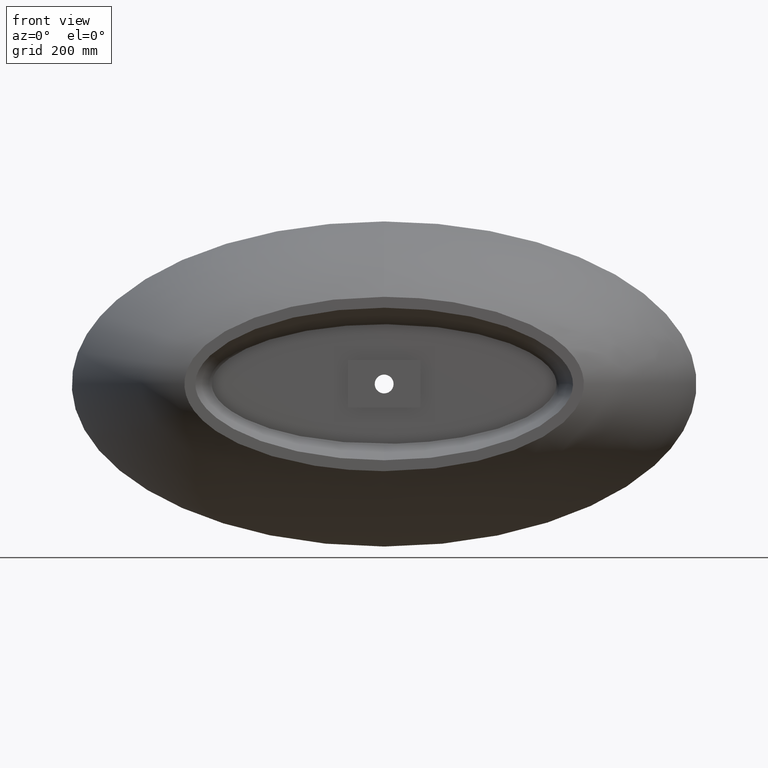
[diagram: clean part render]
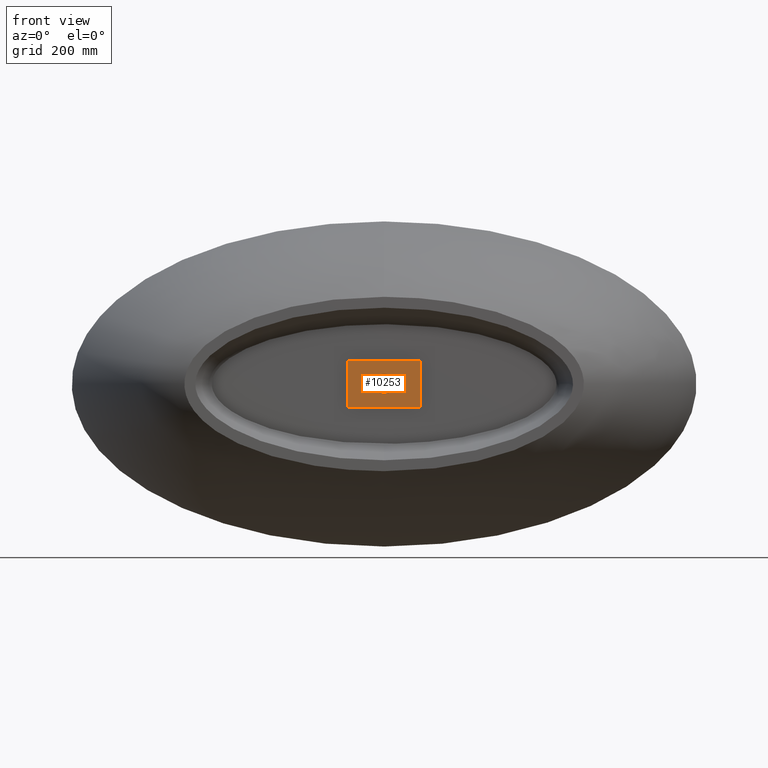
[diagram: same view with one face highlighted and labeled with its STEP entity id]
A machine part, front view. The second image highlights one B-rep face of the part: STEP entity #10253.
In plain terms, the highlighted planar face has unit normal (0, -1, -0).
Its self-contained STEP definition (entity closure, byte-faithful):
#177 = CARTESIAN_POINT ( 'NONE',  ( -100.0000000000368914, -471.0000000000082423, -64.99999999999909051 ) ) ;
#218 = VERTEX_POINT ( 'NONE', #12627 ) ;
#381 = FACE_OUTER_BOUND ( 'NONE', #6553, .T. ) ;
#452 = CARTESIAN_POINT ( 'NONE',  ( 99.99999999996312283, -470.9999999999922693, 65.00000000000092371 ) ) ;
#1175 = ORIENTED_EDGE ( 'NONE', *, *, #13981, .T. ) ;
#1448 = CARTESIAN_POINT ( 'NONE',  ( 99.99999999996312283, -470.9999999999916440, -64.99999999999909051 ) ) ;
#1531 = FACE_BOUND ( 'NONE', #9932, .T. ) ;
#1742 = VERTEX_POINT ( 'NONE', #10378 ) ;
#2058 = VERTEX_POINT ( 'NONE', #7768 ) ;
#2182 = DIRECTION ( 'NONE',  ( 8.291730470006079686E-14, -1.000000000000000000, -4.990419084549222506E-15 ) ) ;
#2456 = LINE ( 'NONE', #452, #5154 ) ;
#2596 = DIRECTION ( 'NONE',  ( -0.000000000000000000, -4.697097411875662165E-15, 1.000000000000000000 ) ) ;
#2629 = VECTOR ( 'NONE', #5401, 1000.000000000000000 ) ;
#2698 = EDGE_CURVE ( 'NONE', #1742, #218, #7873, .T. ) ;
#2815 = ORIENTED_EDGE ( 'NONE', *, *, #13725, .T. ) ;
#3080 = AXIS2_PLACEMENT_3D ( 'NONE', #13056, #13996, #5469 ) ;
#3603 = PLANE ( 'NONE',  #13150 ) ;
#3745 = DIRECTION ( 'NONE',  ( 1.000000000000000000, 8.298917109073045140E-14, 0.000000000000000000 ) ) ;
#3827 = LINE ( 'NONE', #11500, #11795 ) ;
#4280 = DIRECTION ( 'NONE',  ( 1.000000000000000000, 8.298917109073045140E-14, 0.000000000000000000 ) ) ;
#4538 = VERTEX_POINT ( 'NONE', #1448 ) ;
#4926 = VECTOR ( 'NONE', #4280, 1000.000000000000000 ) ;
#5154 = VECTOR ( 'NONE', #2596, 1000.000000000000000 ) ;
#5401 = DIRECTION ( 'NONE',  ( 0.000000000000000000, 4.697097411875662165E-15, -1.000000000000000000 ) ) ;
#5406 = ORIENTED_EDGE ( 'NONE', *, *, #2698, .F. ) ;
#5469 = DIRECTION ( 'NONE',  ( 1.000000000000000000, 8.326672684711607817E-14, 0.000000000000000000 ) ) ;
#5749 = ORIENTED_EDGE ( 'NONE', *, *, #9009, .F. ) ;
#5984 = DIRECTION ( 'NONE',  ( -1.000000000000000000, -8.298917109073045140E-14, -0.000000000000000000 ) ) ;
#6553 = EDGE_LOOP ( 'NONE', ( #13470, #2815, #1175, #11745 ) ) ;
#7617 = VERTEX_POINT ( 'NONE', #13845 ) ;
#7768 = CARTESIAN_POINT ( 'NONE',  ( 99.99999999996312283, -470.9999999999922693, 65.00000000000092371 ) ) ;
#7873 = CIRCLE ( 'NONE', #9956, 25.99999999992838795 ) ;
#7976 = CARTESIAN_POINT ( 'NONE',  ( 3.908696532065535291E-11, -471.0000000000001705, -2.216146062738193839E-12 ) ) ;
#8356 = CIRCLE ( 'NONE', #3080, 25.99999999992838795 ) ;
#8461 = EDGE_CURVE ( 'NONE', #11061, #4538, #8720, .T. ) ;
#8720 = LINE ( 'NONE', #177, #4926 ) ;
#8855 = CARTESIAN_POINT ( 'NONE',  ( 3.898174842273249223E-11, -471.0000000000002274, -2.348196622013039197E-12 ) ) ;
#9009 = EDGE_CURVE ( 'NONE', #218, #1742, #8356, .T. ) ;
#9458 = CARTESIAN_POINT ( 'NONE',  ( -100.0000000000368914, -471.0000000000082423, -64.99999999999909051 ) ) ;
#9801 = DIRECTION ( 'NONE',  ( 1.000000000000000000, 8.326672684711607817E-14, 0.000000000000000000 ) ) ;
#9932 = EDGE_LOOP ( 'NONE', ( #5749, #5406 ) ) ;
#9956 = AXIS2_PLACEMENT_3D ( 'NONE', #8855, #2182, #9801 ) ;
#10155 = EDGE_CURVE ( 'NONE', #4538, #2058, #2456, .T. ) ;
#10253 = ADVANCED_FACE ( 'NONE', ( #381, #1531 ), #3603, .T. ) ;
#10378 = CARTESIAN_POINT ( 'NONE',  ( -25.99999999988940758, -471.0000000000024443, -2.279507421146223259E-12 ) ) ;
#11061 = VERTEX_POINT ( 'NONE', #9458 ) ;
#11500 = CARTESIAN_POINT ( 'NONE',  ( -100.0000000000368914, -471.0000000000088676, 65.00000000000092371 ) ) ;
#11745 = ORIENTED_EDGE ( 'NONE', *, *, #8461, .T. ) ;
#11795 = VECTOR ( 'NONE', #5984, 1000.000000000000000 ) ;
#12627 = CARTESIAN_POINT ( 'NONE',  ( 25.99999999996737188, -470.9999999999980673, -2.348196622013039197E-12 ) ) ;
#13056 = CARTESIAN_POINT ( 'NONE',  ( 3.898174842273249223E-11, -471.0000000000002274, -2.348196622013039197E-12 ) ) ;
#13150 = AXIS2_PLACEMENT_3D ( 'NONE', #7976, #13426, #3745 ) ;
#13426 = DIRECTION ( 'NONE',  ( 8.298917109073045140E-14, -1.000000000000000000, -4.697097411875662165E-15 ) ) ;
#13470 = ORIENTED_EDGE ( 'NONE', *, *, #10155, .T. ) ;
#13725 = EDGE_CURVE ( 'NONE', #2058, #7617, #3827, .T. ) ;
#13807 = LINE ( 'NONE', #14065, #2629 ) ;
#13845 = CARTESIAN_POINT ( 'NONE',  ( -100.0000000000368914, -471.0000000000088676, 65.00000000000092371 ) ) ;
#13981 = EDGE_CURVE ( 'NONE', #7617, #11061, #13807, .T. ) ;
#13996 = DIRECTION ( 'NONE',  ( 8.291730470006079686E-14, -1.000000000000000000, -4.990419084549222506E-15 ) ) ;
#14065 = CARTESIAN_POINT ( 'NONE',  ( -100.0000000000368914, -471.0000000000088676, 65.00000000000092371 ) ) ;